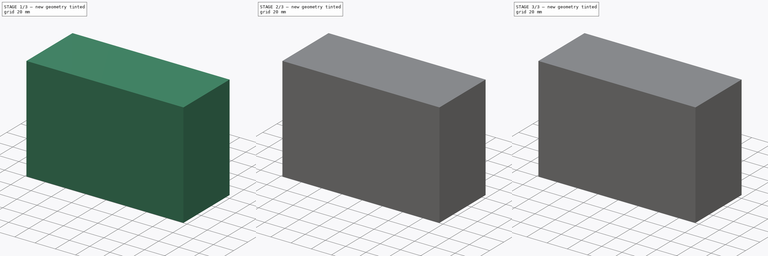
[diagram: build sequence overview — one tinted view per stage of 3, left to right]
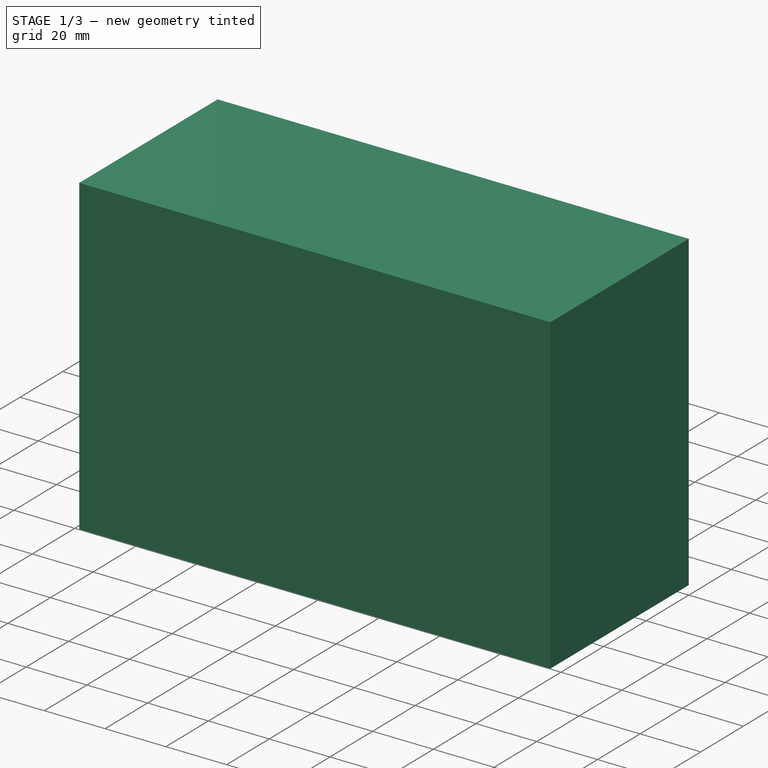
[diagram: stage 1 of 3 — iso view after this stage's code; geometry added in this stage tinted green]
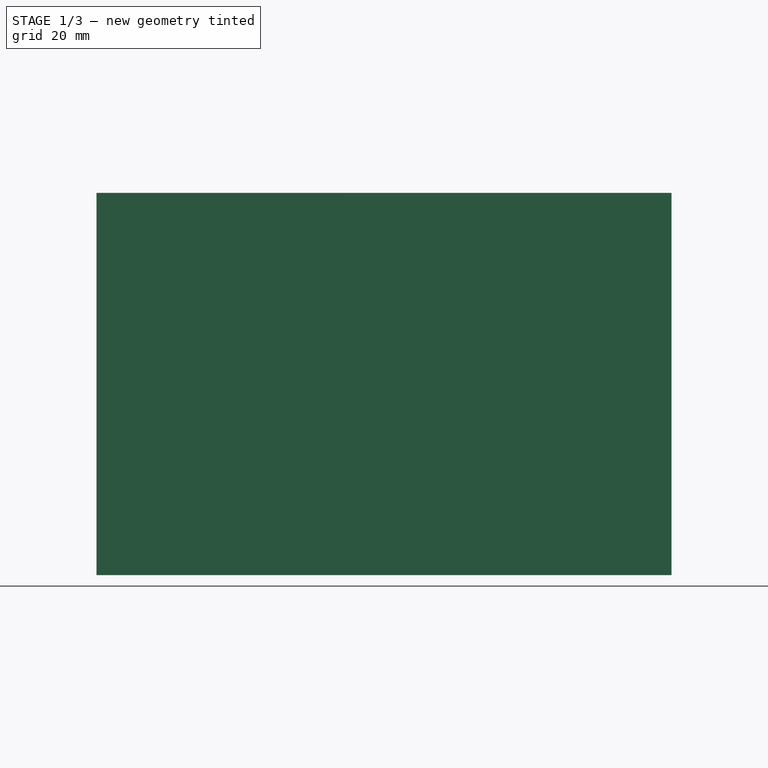
[diagram: stage 1 of 3 — front view after this stage's code; geometry added in this stage tinted green]
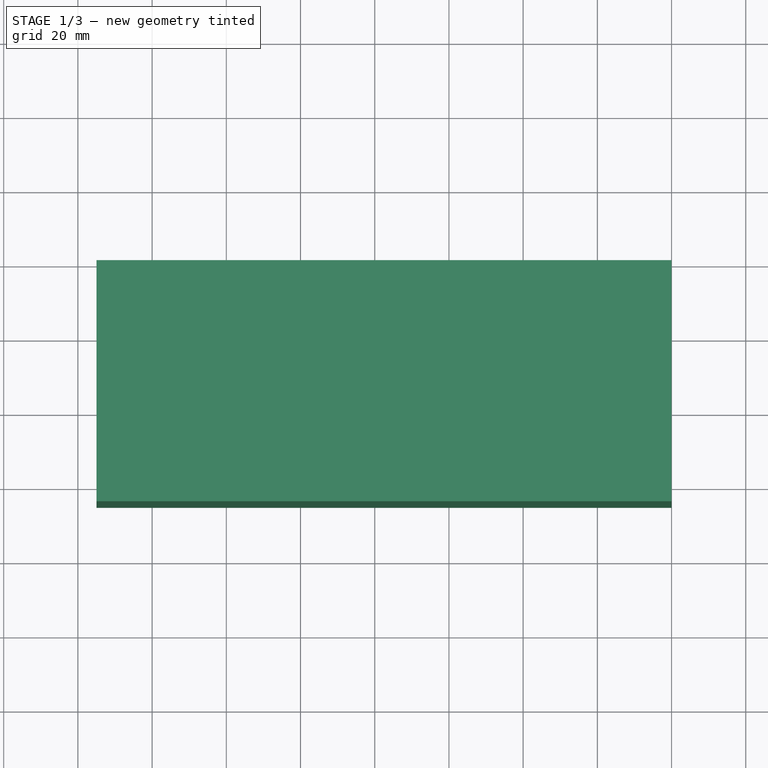
[diagram: stage 1 of 3 — top view after this stage's code; geometry added in this stage tinted green]
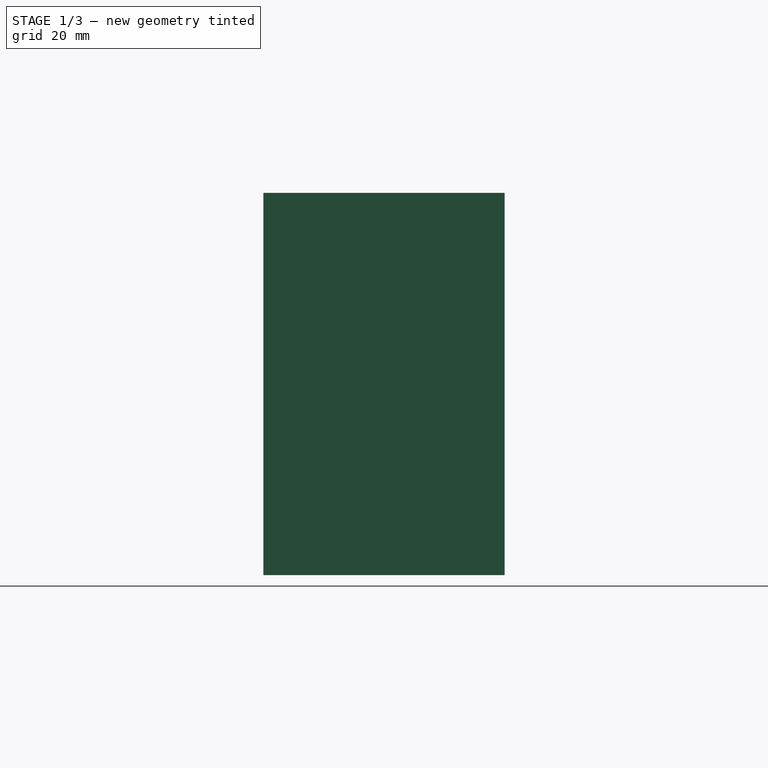
[diagram: stage 1 of 3 — right view after this stage's code; geometry added in this stage tinted green]
FCSTD DOCUMENT  (FreeCAD 0.19R)
Label: pico_case
License: All rights reserved
LicenseURL: http://en.wikipedia.org/wiki/All_rights_reserved
objects: Sketcher::SketchObject×6, PartDesign::Pad×5, PartDesign::Body×2, PartDesign::Pocket×1
note: 20 computed .brp shape members not serialized (recipe doc carries the construction recipe); baked Part::Feature solids carry a one-line shape summary decoded from their .brp

FEATURE [PartDesign::Body] Body  label="Lid"
  Group = -> [Sketch,Pad,Sketch001,Pad001,Sketch002,Pad002]
  Origin = -> Origin
  Tip = -> Pad002
FEATURE [Sketcher::SketchObject] Sketch003
  FullyConstrained = true
  MapMode = 5
  Support = -> [XY_Plane001]
  sketch-geometry (4):
    g0: LineSegment StartX=-155 StartY=0 StartZ=0 EndX=0 EndY=0 EndZ=0
    g1: LineSegment StartX=0 StartY=0 StartZ=0 EndX=0 EndY=-65 EndZ=0
    g2: LineSegment StartX=0 StartY=-65 StartZ=0 EndX=-155 EndY=-65 EndZ=0
    g3: LineSegment StartX=-155 StartY=-65 StartZ=0 EndX=-155 EndY=0 EndZ=0
  constraints (11):
    c: Coincident(g0,g1)
    c: Coincident(g1,g2)
    c: Coincident(g2,g3)
    c: Coincident(g3,g0)
    c: Horizontal(g0)
    c: Horizontal(g2)
    c: Vertical(g1)
    c: Vertical(g3)
    c: Distance(g0) = 155
    c: Distance(g3) = 65
    c: Coincident(g0,g-1)
FEATURE [PartDesign::Pad] Pad003
  Direction = (1,1,1)
  Length = 3
  Length2 = 100
  Profile = -> Sketch003
  Type = 0
FEATURE [Sketcher::SketchObject] Sketch004
  ExternalGeometry = -> [Pad003]
  FullyConstrained = true
  MapMode = 5
  Placement = pos=(0,0,0) rot=(1,0,0;3.14159rad)
  Support = -> [Pad003]
  sketch-geometry (8):
    g0: LineSegment StartX=-155 StartY=65 StartZ=0 EndX=0 EndY=65 EndZ=0
    g1: LineSegment StartX=0 StartY=65 StartZ=0 EndX=0 EndY=0 EndZ=0
    g2: LineSegment StartX=0 StartY=0 StartZ=0 EndX=-155 EndY=0 EndZ=0
    g3: LineSegment StartX=-155 StartY=0 StartZ=0 EndX=-155 EndY=65 EndZ=0
    g4: LineSegment StartX=-152.5 StartY=62.5 StartZ=0 EndX=-2.5 EndY=62.5 EndZ=0
    g5: LineSegment StartX=-2.5 StartY=62.5 StartZ=0 EndX=-2.5 EndY=2.5 EndZ=0
    g6: LineSegment StartX=-2.5 StartY=2.5 StartZ=0 EndX=-152.5 EndY=2.5 EndZ=0
    g7: LineSegment StartX=-152.5 StartY=2.5 StartZ=0 EndX=-152.5 EndY=62.5 EndZ=0
  constraints (22):
    c: Coincident(g0,g1)
    c: Coincident(g1,g2)
    c: Coincident(g2,g3)
    c: Coincident(g3,g0)
    c: Horizontal(g0)
    c: Horizontal(g2)
    c: Vertical(g1)
    c: Vertical(g3)
    c: Coincident(g4,g5)
    c: Coincident(g5,g6)
    c: Coincident(g6,g7)
    c: Coincident(g7,g4)
    c: Horizontal(g4)
    c: Horizontal(g6)
    c: Vertical(g5)
    c: Vertical(g7)
    c: DistanceX(g0,g4) = 2.5
    c: DistanceX(g5,g1) = 2.5
    c: DistanceY(g4,g0) = 2.5
    c: DistanceY(g1,g5) = 2.5
    c: Coincident(g0,g-3)
    c: Coincident(g1,g-1)
FEATURE [PartDesign::Pad] Pad004
  BaseFeature = -> Pad003
  Direction = (1,1,1)
  Length = 100
  Length2 = 100
  Profile = -> Sketch004
  Type = 0
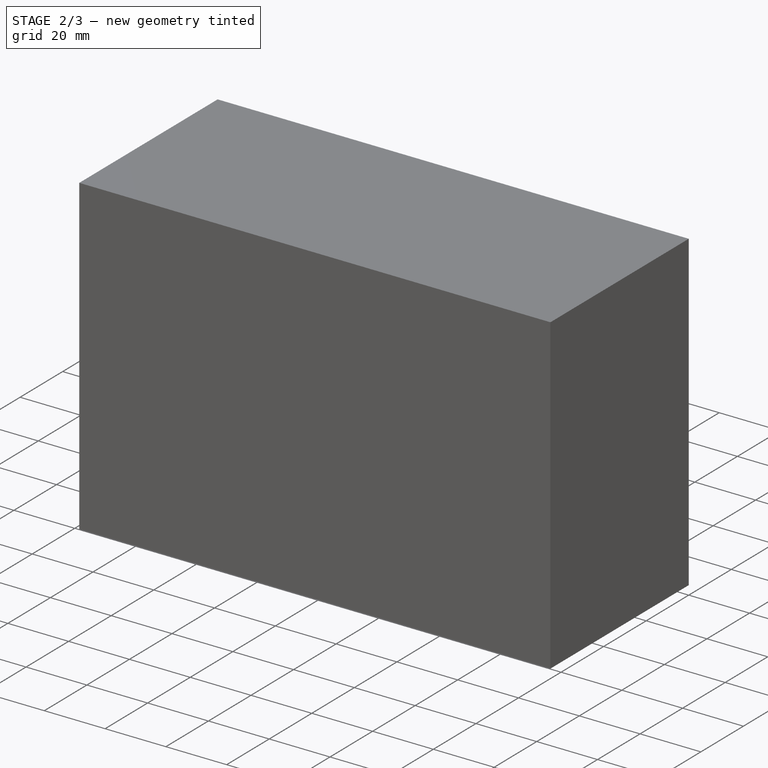
[diagram: stage 2 of 3 — iso view after this stage's code; geometry added in this stage tinted green]
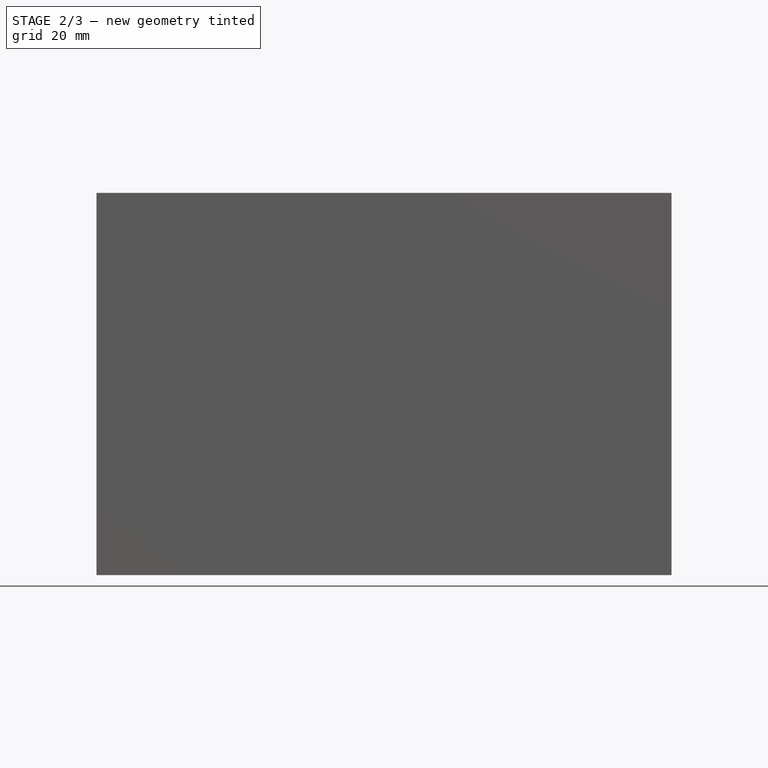
[diagram: stage 2 of 3 — front view after this stage's code; geometry added in this stage tinted green]
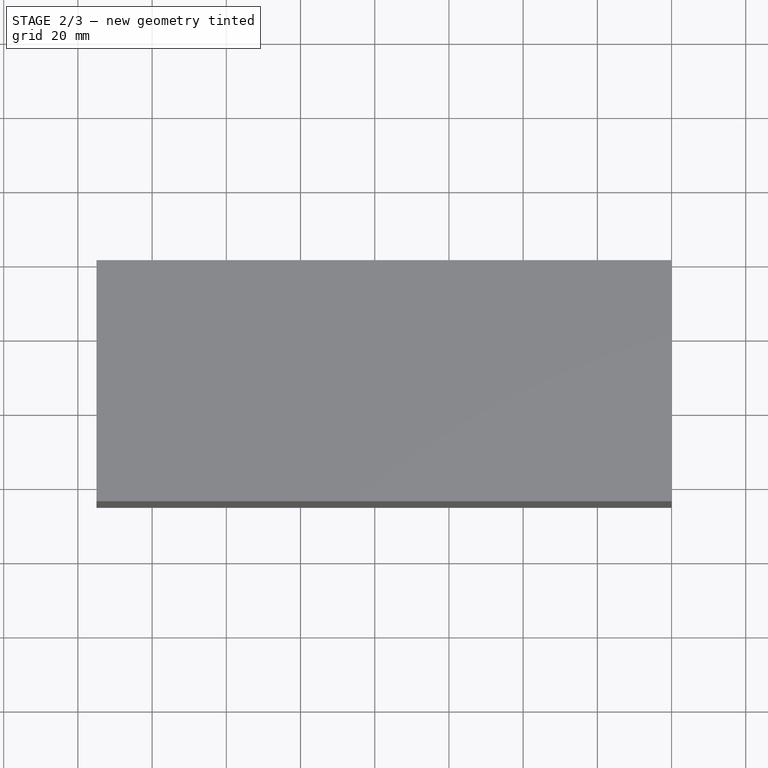
[diagram: stage 2 of 3 — top view after this stage's code; geometry added in this stage tinted green]
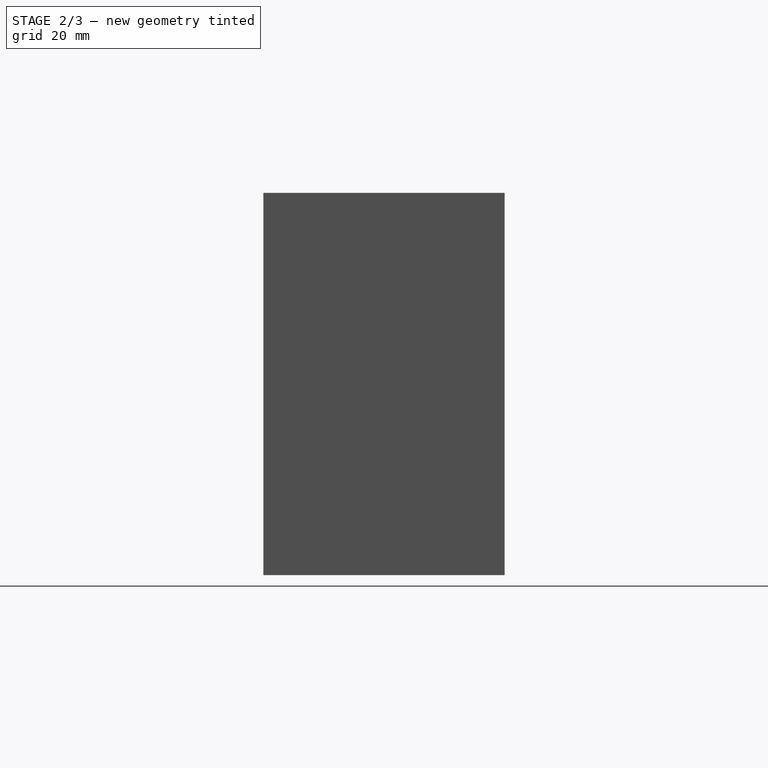
[diagram: stage 2 of 3 — right view after this stage's code; geometry added in this stage tinted green]
FEATURE [Sketcher::SketchObject] Sketch
  FullyConstrained = true
  MapMode = 5
  Support = -> [XY_Plane]
  sketch-geometry (12):
    g0: LineSegment StartX=-155 StartY=0 StartZ=0 EndX=0 EndY=0 EndZ=0
    g1: LineSegment StartX=0 StartY=0 StartZ=0 EndX=0 EndY=-65 EndZ=0
    g2: LineSegment StartX=0 StartY=-65 StartZ=0 EndX=-155 EndY=-65 EndZ=0
    g3: LineSegment StartX=-155 StartY=-65 StartZ=0 EndX=-155 EndY=0 EndZ=0
    g4: LineSegment StartX=-84 StartY=-18 StartZ=0 EndX=-12 EndY=-18 EndZ=0
    g5: LineSegment StartX=-12 StartY=-18 StartZ=0 EndX=-12 EndY=-43 EndZ=0
    g6: LineSegment StartX=-12 StartY=-43 StartZ=0 EndX=-84 EndY=-43 EndZ=0
    g7: LineSegment StartX=-84 StartY=-43 StartZ=0 EndX=-84 EndY=-18 EndZ=0
    g8: Circle CenterX=-120 CenterY=-15 CenterZ=0 NormalX=0 NormalY=0 NormalZ=1 AngleXU=0 Radius=2.5
    g9: Circle CenterX=-112 CenterY=-15 CenterZ=0 NormalX=0 NormalY=0 NormalZ=1 AngleXU=0 Radius=2.5
    g10: Circle CenterX=-104 CenterY=-15 CenterZ=0 NormalX=0 NormalY=0 NormalZ=1 AngleXU=0 Radius=2.5
    g11: Circle CenterX=-96 CenterY=-15 CenterZ=0 NormalX=0 NormalY=0 NormalZ=1 AngleXU=0 Radius=2.5
  constraints (35):
    c: Coincident(g0,g1)
    c: Coincident(g1,g2)
    c: Coincident(g2,g3)
    c: Coincident(g3,g0)
    c: Horizontal(g0)
    c: Horizontal(g2)
    c: Vertical(g1)
    c: Vertical(g3)
    c: Coincident(g4,g5)
    c: Coincident(g5,g6)
    c: Coincident(g6,g7)
    c: Coincident(g7,g4)
    c: Horizontal(g4)
    c: Horizontal(g6)
    c: Vertical(g5)
    c: Vertical(g7)
    c: Diameter(g8) = 5
    c: Diameter(g9) = 5
    c: Diameter(g10) = 5
    c: Diameter(g11) = 5
    c: DistanceX(g8,g9) = 8
    c: DistanceX(g9,g10) = 8
    c: DistanceX(g10,g11) = 8
    c: DistanceY(g8,g9) = 0
    c: DistanceY(g9,g10) = 0
    c: DistanceY(g11,g10) = 0
    c: DistanceX(g0,g8) = 35
    c: Distance(g4) = 72
    c: Distance(g7) = 25
    c: DistanceX(g11,g4) = 12
    c: DistanceX(g5,g1) = 12
    c: Distance(g3) = 65
    c: DistanceY(g4,g11) = 3
    c: DistanceY(g11,g0) = 15
    c: Coincident(g0,g-1)
FEATURE [PartDesign::Pad] Pad
  Direction = (1,1,1)
  Length = 3
  Length2 = 100
  Profile = -> Sketch
  Type = 0
FEATURE [Sketcher::SketchObject] Sketch005
  ExternalGeometry = -> [Pad004]
  FullyConstrained = true
  MapMode = 5
  Placement = pos=(-155,0,0) rot=(0.57735,-0.57735,-0.57735;2.0944rad)
  Support = -> [Pad004]
  sketch-geometry (4):
    g0: LineSegment StartX=20 StartY=-78 StartZ=0 EndX=35 EndY=-78 EndZ=0
    g1: LineSegment StartX=35 StartY=-78 StartZ=0 EndX=35 EndY=-100 EndZ=0
    g2: LineSegment StartX=35 StartY=-100 StartZ=0 EndX=20 EndY=-100 EndZ=0
    g3: LineSegment StartX=20 StartY=-100 StartZ=0 EndX=20 EndY=-78 EndZ=0
  constraints (12):
    c: Coincident(g0,g1)
    c: Coincident(g1,g2)
    c: Coincident(g2,g3)
    c: Coincident(g3,g0)
    c: Horizontal(g0)
    c: Horizontal(g2)
    c: Vertical(g1)
    c: Vertical(g3)
    c: DistanceX(g-3,g0) = 20
    c: Distance(g0) = 15
    c: Distance(g1) = 22
    c: DistanceY(g-3,g2) = 0
FEATURE [PartDesign::Pocket] Pocket
  BaseFeature = -> Pad004
  Length = 5
  Length2 = 100
  Profile = -> Sketch005
  Type = 0
FEATURE [PartDesign::Body] Body001  label="Box"
  Group = -> [Sketch003,Pad003,Sketch004,Pad004,Sketch005,Pocket]
  Origin = -> Origin001
  Tip = -> Pocket
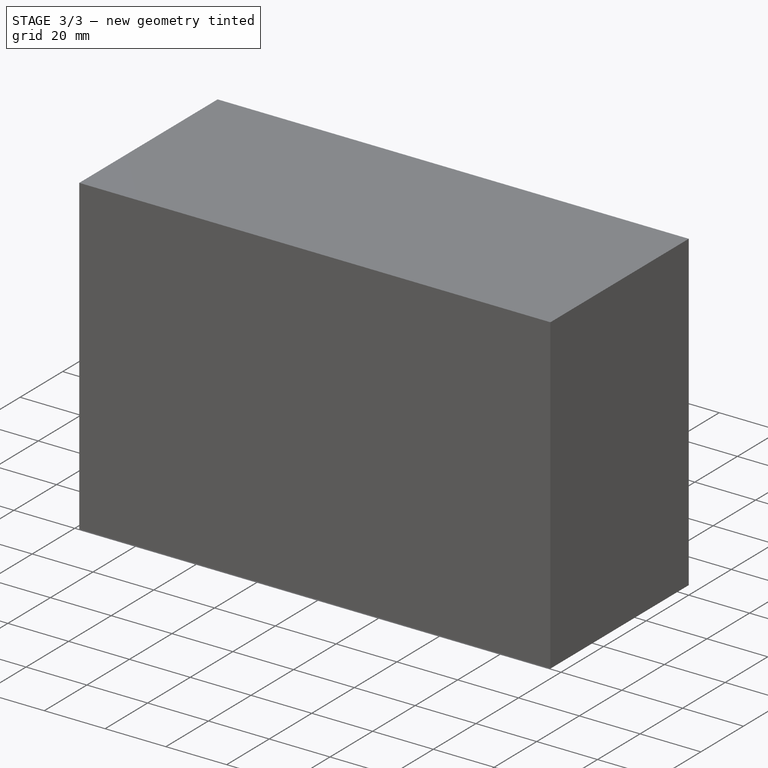
[diagram: stage 3 of 3 — iso view after this stage's code; geometry added in this stage tinted green]
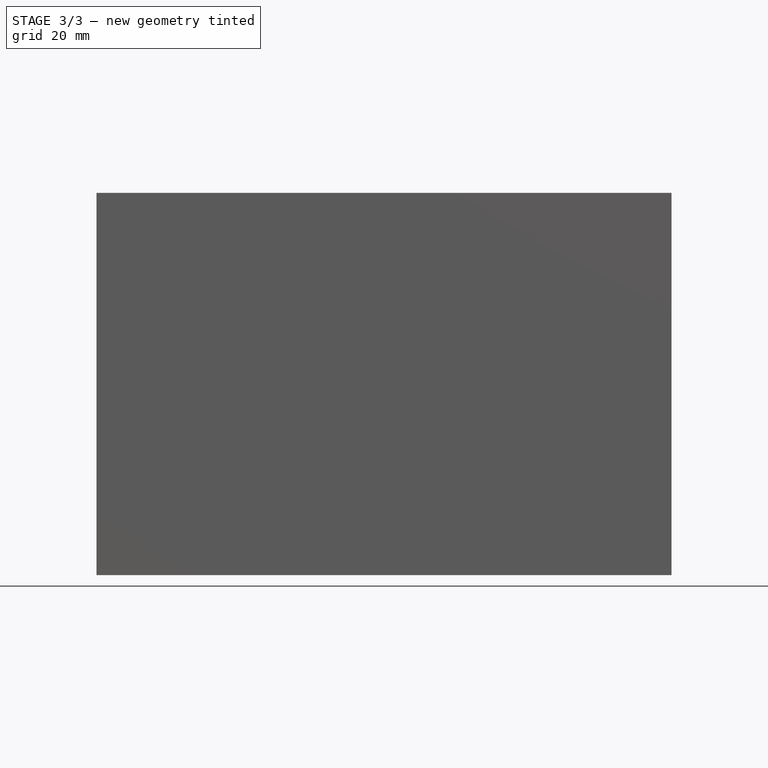
[diagram: stage 3 of 3 — front view after this stage's code; geometry added in this stage tinted green]
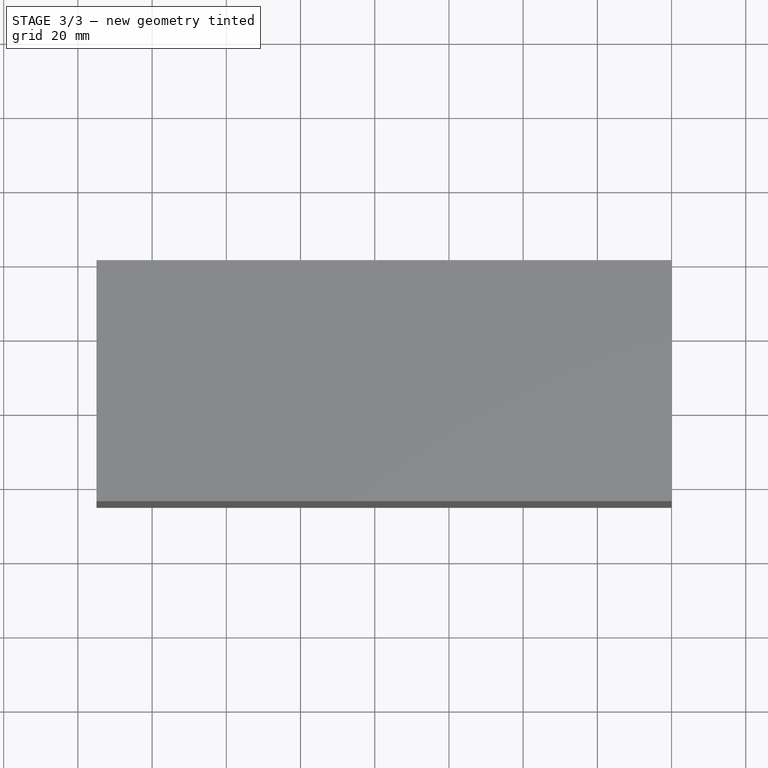
[diagram: stage 3 of 3 — top view after this stage's code; geometry added in this stage tinted green]
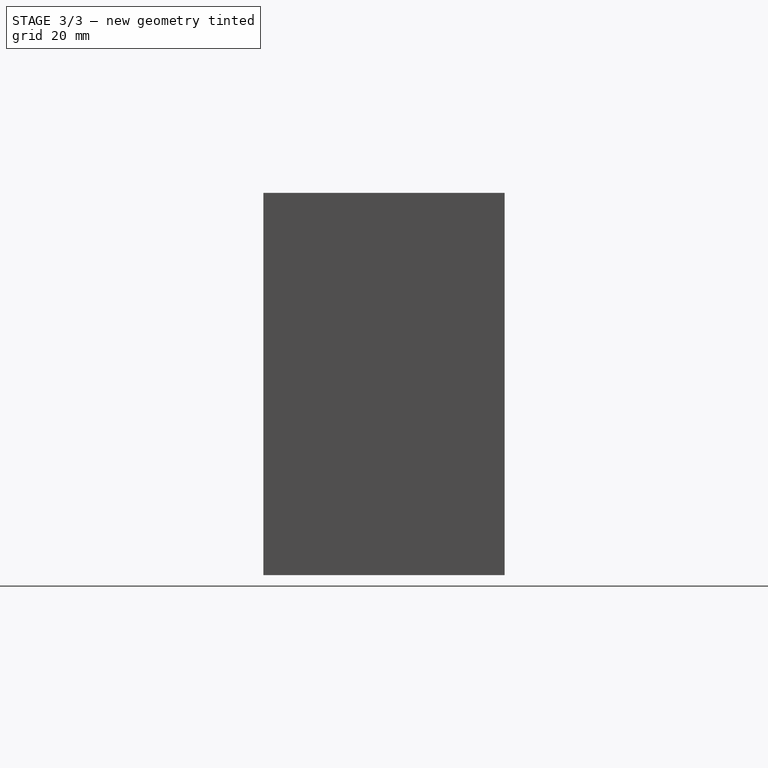
[diagram: stage 3 of 3 — right view after this stage's code; geometry added in this stage tinted green]
FEATURE [Sketcher::SketchObject] Sketch001
  ExternalGeometry = -> [Pad]
  FullyConstrained = true
  MapMode = 5
  Placement = pos=(0,0,0) rot=(1,0,0;3.14159rad)
  Support = -> [Pad]
  sketch-geometry (8):
    g0: LineSegment StartX=-152 StartY=62 StartZ=0 EndX=-3 EndY=62 EndZ=0
    g1: LineSegment StartX=-3 StartY=62 StartZ=0 EndX=-3 EndY=3 EndZ=0
    g2: LineSegment StartX=-3 StartY=3 StartZ=0 EndX=-152 EndY=3 EndZ=0
    g3: LineSegment StartX=-152 StartY=3 StartZ=0 EndX=-152 EndY=62 EndZ=0
    g4: LineSegment StartX=-149 StartY=59 StartZ=0 EndX=-6 EndY=59 EndZ=0
    g5: LineSegment StartX=-6 StartY=59 StartZ=0 EndX=-6 EndY=6 EndZ=0
    g6: LineSegment StartX=-6 StartY=6 StartZ=0 EndX=-149 EndY=6 EndZ=0
    g7: LineSegment StartX=-149 StartY=6 StartZ=0 EndX=-149 EndY=59 EndZ=0
  constraints (24):
    c: Coincident(g0,g1)
    c: Coincident(g1,g2)
    c: Coincident(g2,g3)
    c: Coincident(g3,g0)
    c: Horizontal(g0)
    c: Horizontal(g2)
    c: Vertical(g1)
    c: Vertical(g3)
    c: Coincident(g4,g5)
    c: Coincident(g5,g6)
    c: Coincident(g6,g7)
    c: Coincident(g7,g4)
    c: Horizontal(g4)
    c: Horizontal(g6)
    c: Vertical(g5)
    c: Vertical(g7)
    c: DistanceX(g0,g-4) = 3
    c: DistanceY(g0,g-4) = 3
    c: DistanceX(g-6,g2) = 3
    c: DistanceY(g-6,g2) = 3
    c: DistanceX(g0,g4) = 3
    c: DistanceY(g4,g0) = 3
    c: DistanceX(g5,g1) = 3
    c: DistanceY(g1,g5) = 3
FEATURE [PartDesign::Pad] Pad001
  BaseFeature = -> Pad
  Direction = (1,1,1)
  Length = 3
  Length2 = 100
  Profile = -> Sketch001
  Type = 0
FEATURE [Sketcher::SketchObject] Sketch002
  ExternalGeometry = -> [Pad001]
  FullyConstrained = true
  MapMode = 5
  Placement = pos=(0,0,0) rot=(1,0,0;3.14159rad)
  Support = -> [Pad001]
  sketch-geometry (8):
    g0: Circle CenterX=-142.5 CenterY=43.5 CenterZ=0 NormalX=0 NormalY=0 NormalZ=1 AngleXU=0 Radius=1.5
    g1: Circle CenterX=-142.5 CenterY=11.5 CenterZ=0 NormalX=0 NormalY=0 NormalZ=1 AngleXU=0 Radius=1.5
    g2: Circle CenterX=-92.5 CenterY=43.5 CenterZ=0 NormalX=0 NormalY=0 NormalZ=1 AngleXU=0 Radius=1.5
    g3: Circle CenterX=-92.5 CenterY=11.5 CenterZ=0 NormalX=0 NormalY=0 NormalZ=1 AngleXU=0 Radius=1.5
    g4: Circle CenterX=-87.5 CenterY=46.5 CenterZ=0 NormalX=0 NormalY=0 NormalZ=1 AngleXU=0 Radius=2.5
    g5: Circle CenterX=-8.5 CenterY=46.5 CenterZ=0 NormalX=0 NormalY=0 NormalZ=1 AngleXU=0 Radius=2.5
    g6: Circle CenterX=-8.5 CenterY=14.5 CenterZ=0 NormalX=0 NormalY=0 NormalZ=1 AngleXU=0 Radius=2.5
    g7: Circle CenterX=-87.5 CenterY=14.5 CenterZ=0 NormalX=0 NormalY=0 NormalZ=1 AngleXU=0 Radius=2.5
  constraints (24):
    c: Diameter(g0) = 3
    c: Diameter(g1) = 3
    c: Diameter(g2) = 3
    c: Diameter(g3) = 3
    c: Diameter(g4) = 5
    c: Diameter(g5) = 5
    c: Diameter(g6) = 5
    c: Diameter(g7) = 5
    c: DistanceX(g4,g-3) = 3.5
    c: DistanceX(g7,g-3) = 3.5
    c: DistanceX(g-4,g5) = 3.5
    c: DistanceX(g-4,g6) = 3.5
    c: DistanceY(g6,g-4) = 3.5
    c: DistanceY(g-4,g5) = 3.5
    c: DistanceY(g-3,g4) = 3.5
    c: DistanceY(g7,g-3) = 3.5
    c: DistanceX(g-5,g3) = 3.5
    c: DistanceY(g3,g-5) = 3.5
    c: DistanceX(g1,g3) = 50
    c: DistanceX(g2,g3) = 0
    c: DistanceY(g3,g1) = 0
    c: DistanceY(g3,g2) = 32
    c: DistanceY(g2,g0) = 0
    c: DistanceX(g0,g1) = 0
FEATURE [PartDesign::Pad] Pad002
  BaseFeature = -> Pad001
  Direction = (1,1,1)
  Length = 3
  Length2 = 100
  Profile = -> Sketch002
  Type = 0
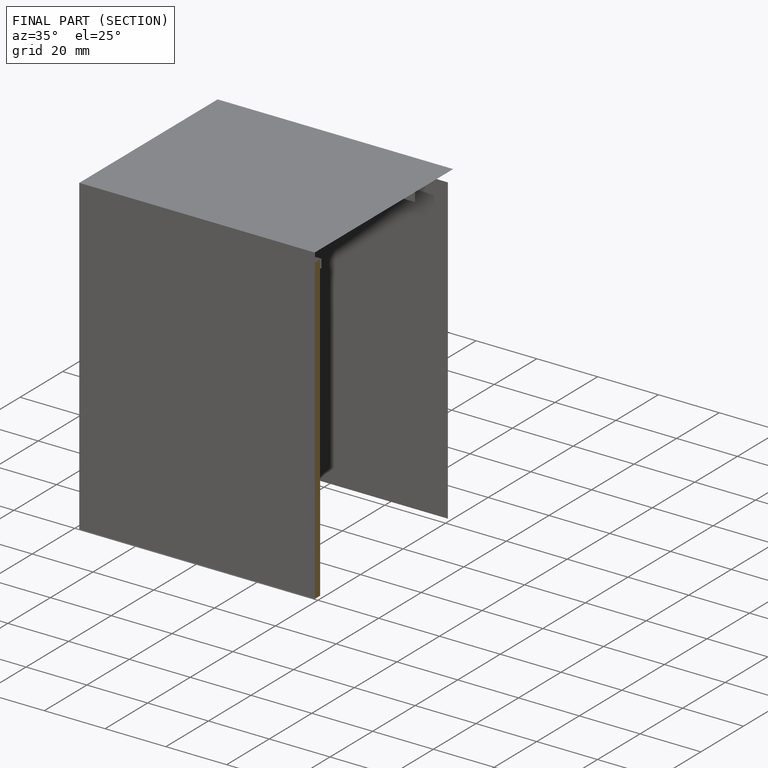
[diagram: finished part — half-section view (interior)]
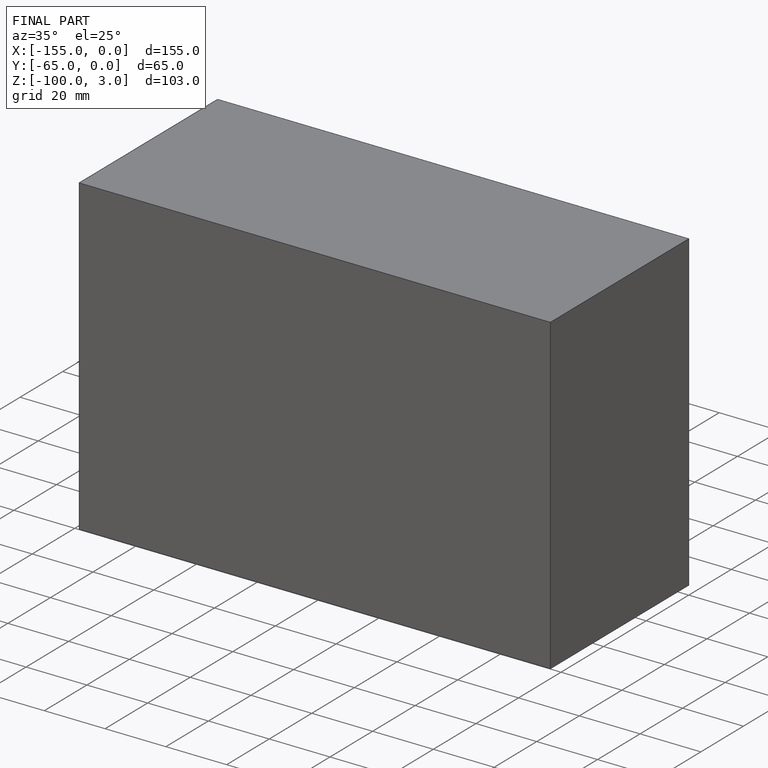
[diagram: finished part — iso view with bounding-box wireframe]
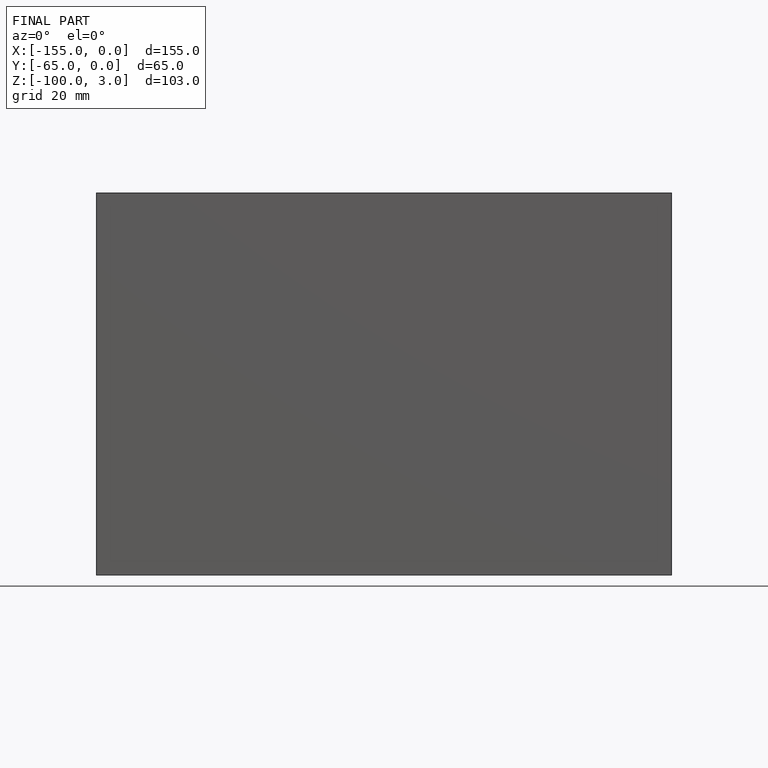
[diagram: finished part — front view with bounding-box wireframe]
